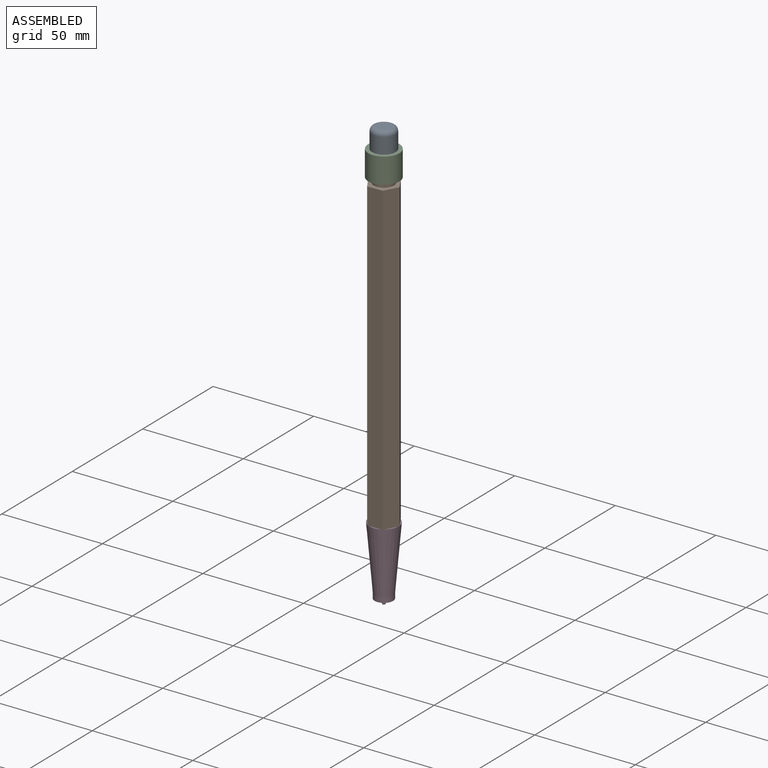
[diagram: assembled view]
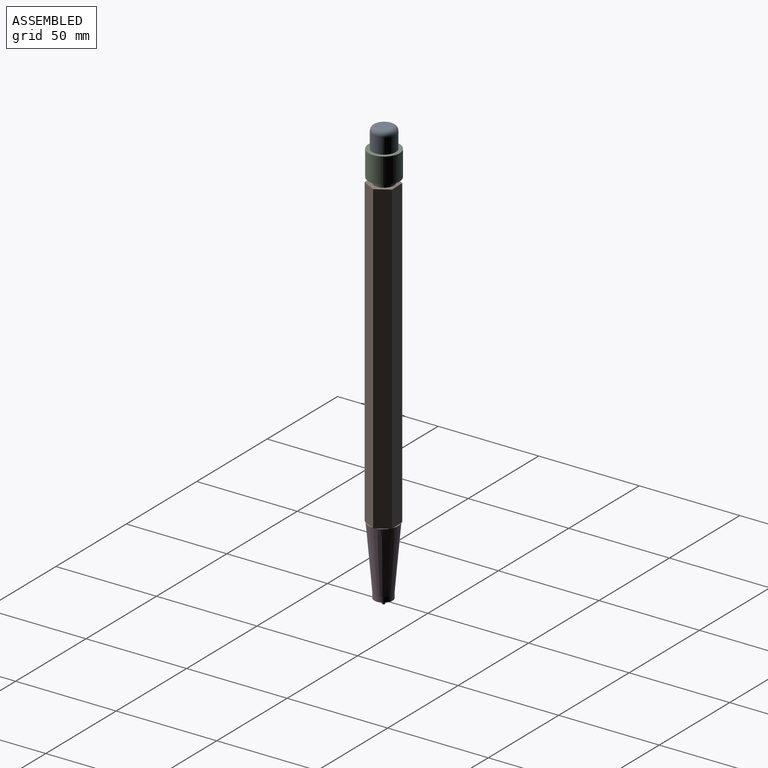
[diagram: assembled view, second angle]
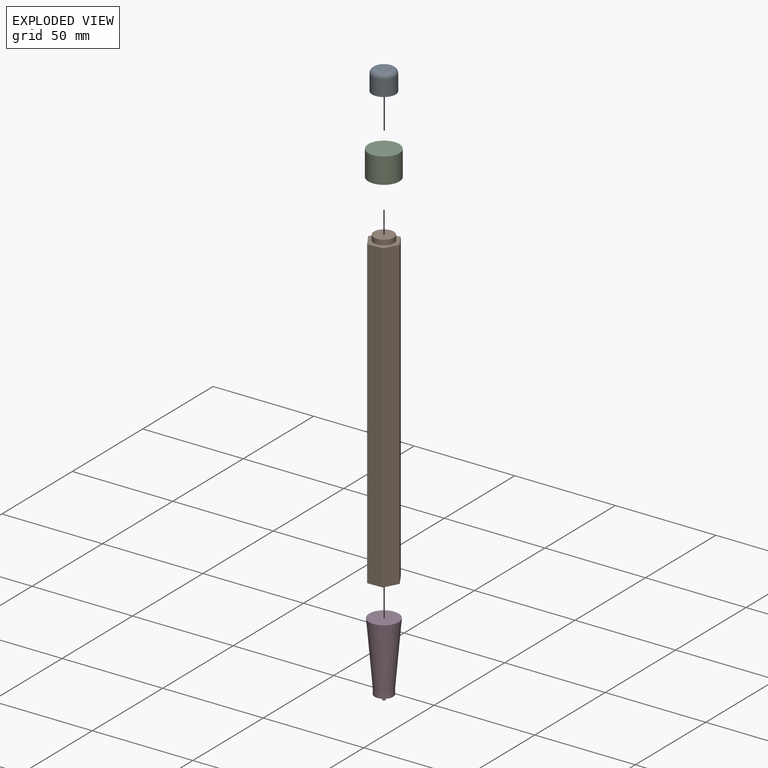
[diagram: exploded view]
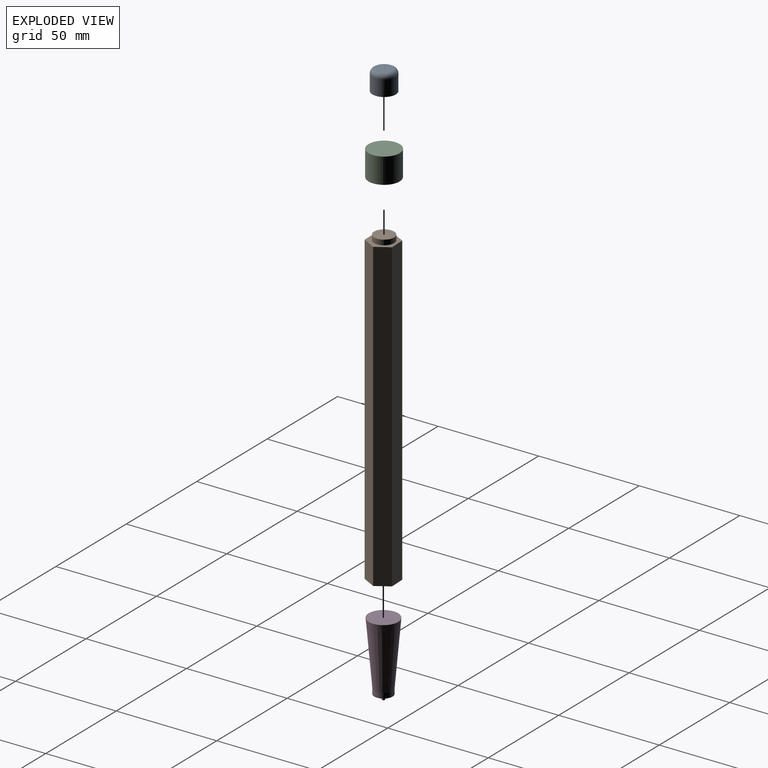
[diagram: exploded view, second angle]
ASSEMBLY  parts=4 mates=3
PART A: 4 faces, bbox 11.7x11.7x10.2 mm
  f0: cylinder r=5.84mm len=11.68mm, axis (0,0,-1), area 282.9mm2, adj f2,f3
  f1: plane 6.78x6.78mm, normal (0,0,1), area 36.1mm2, adj f3
  f2: plane 11.68x11.68mm, normal (0,0,-1), area 107.2mm2, adj f0
  f3: bspline ~11.68x11.67mm, area 125.5mm2, adj f0,f1
PART B: 10 faces, bbox 15.3x13.6x154.9 mm
  f0: plane 152.4x6.78mm, normal (0.88,-0.47,0), area 1170.3mm2, adj f1,f5,f6,f7
  f1: plane 152.4x6.51mm, normal (0.85,0.53,0), area 1170.3mm2, adj f0,f2,f6,f7
  f2: plane 152.4x7.67mm, normal (-0.03,1,0), area 1170.3mm2, adj f1,f3,f6,f7
  f3: plane 152.4x6.78mm, normal (-0.88,0.47,0), area 1170.3mm2, adj f2,f4,f6,f7
  f4: plane 152.4x6.51mm, normal (-0.85,-0.53,0), area 1170.3mm2, adj f3,f5,f6,f7
  f5: plane 152.4x7.67mm, normal (0.03,-1,0), area 1170.3mm2, adj f0,f4,f6,f7
  f6: plane 15.35x13.56mm, normal (0,0,1), area 74.5mm2, adj f0,f1,f2,f3,f4,f5,f8
  f7: plane 15.35x13.56mm, normal (0,0,-1), area 153.2mm2, adj f0,f1,f2,f3,f4,f5
  f8: cylinder r=5.01mm len=10.01mm, axis (0,0,-1), area 79.9mm2, adj f6,f9
  f9: plane 10.01x10.01mm, normal (0,0,1), area 78.7mm2, adj f8
PART C: 3 faces, bbox 15.4x15.4x12.7 mm
  f0: cylinder r=7.72mm len=15.45mm, axis (0,0,-1), area 616.2mm2, adj f1,f2
  f1: plane 15.45x15.45mm, normal (0,0,1), area 187.4mm2, adj f0
  f2: plane 15.45x15.45mm, normal (0,0,-1), area 187.4mm2, adj f0
PART D: 6 faces, bbox 14.7x36.8x14.7 mm
  f0: cone r=4.55mm half-angle=5deg, axis (0,1,0), area 1189.4mm2, adj f1,f2
  f1: plane 14.66x14.66mm, normal (0,1,0), area 168.7mm2, adj f0
  f2: cylinder r=4.55mm len=9.1mm, axis (0,1,0), area 72.6mm2, adj f0,f3
  f3: plane 9.1x9.1mm, normal (0,-1,0), area 63.4mm2, adj f2,f4
  f4: cylinder r=0.73mm len=2.54mm, axis (0,1,0), area 11.7mm2, adj f3,f5
  f5: plane 1.46x1.46mm, normal (0,-1,0), area 1.7mm2, adj f4
PLACE A t=(-20.07,-1.84,116.84)mm
PLACE B t=(0,0,-50.8)mm
PLACE C t=(-15.67,21.36,104.14)mm
PLACE D rot(axis=(0.58,-0.58,-0.58),120deg) t=(-65.79,-13.16,-50.8)mm
MATE fastened B.f7 <-> D.f0  axis (0,0,-1) through (-65.79,-13.16,-50.8)mm
MATE fastened A.f0 <-> C.f0  axis (0,0,-1) through (-65.96,-12.95,116.84)mm
MATE fastened C.f0 <-> B.f8  axis (0,0,-1) through (-65.96,-12.95,104.14)mm
